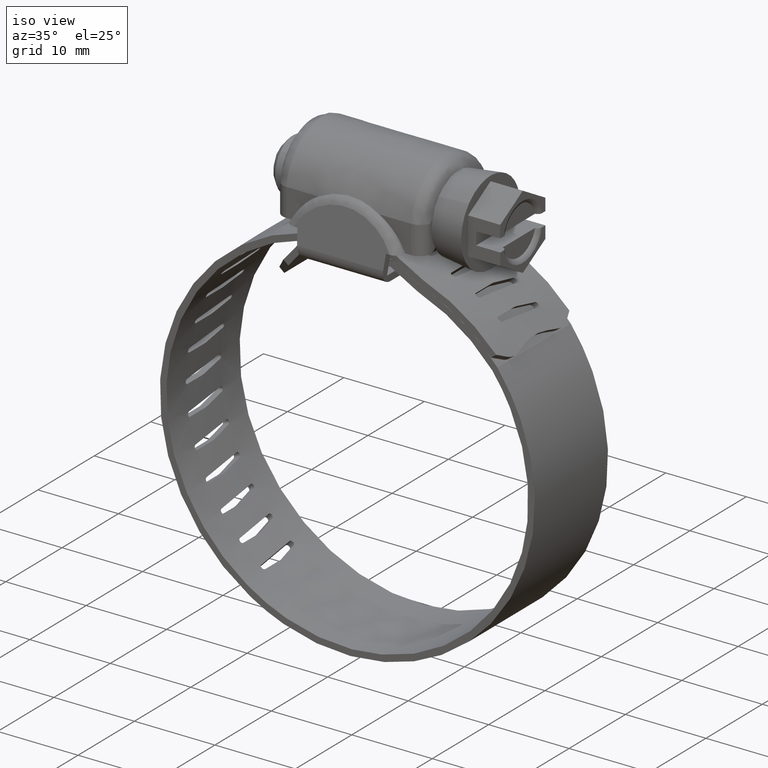
[diagram: clean part render]
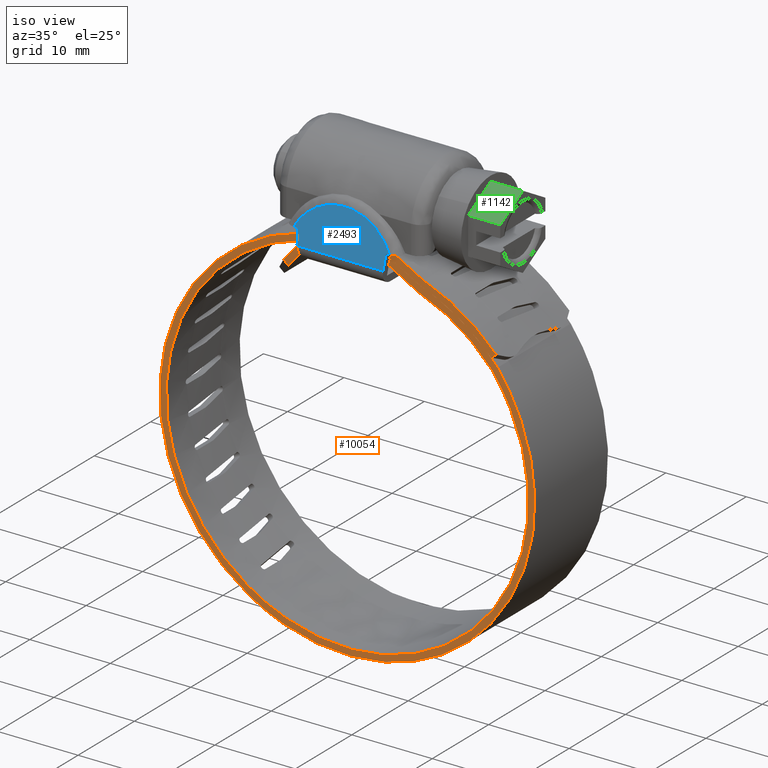
[diagram: same view with three faces highlighted in distinct colors, each labeled with its STEP entity id]
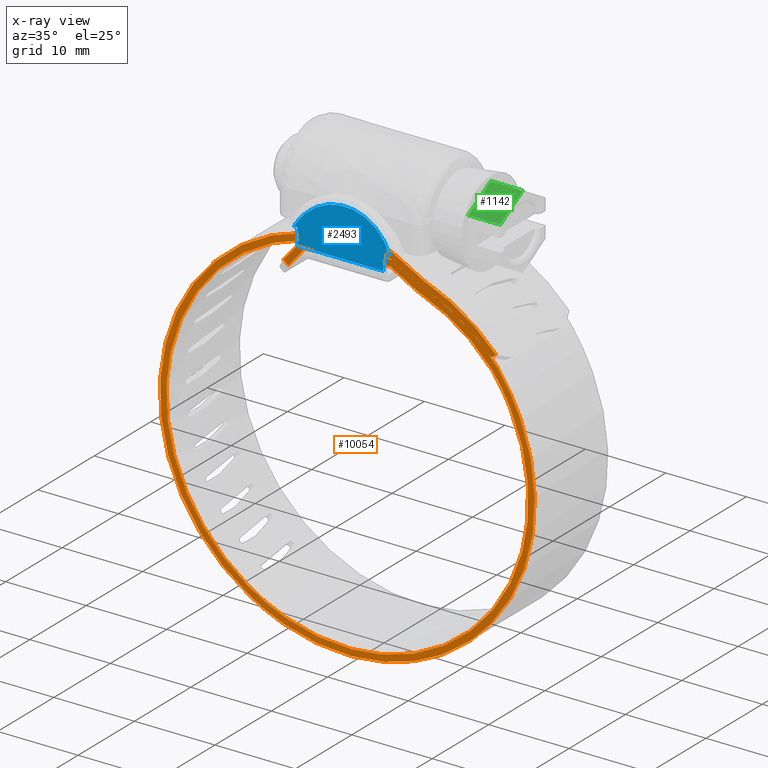
[diagram: x-ray of the same camera — body ghosted, the three highlighted faces saturated]
A machine part, iso view with three faces highlighted in distinct colors.
The next image is the same camera in x-ray (body ghosted, the three faces saturated) — at least one of them is partly hidden behind the body in this view.
Their STEP definitions:

[orange] entity #10054 — the highlighted face is a freeform B-spline surface patch.
#7740=CARTESIAN_POINT('',(-7.943454360733909,-6.500000000000139,8.477295496239281));
#7741=VERTEX_POINT('',#7740);
#7754=CARTESIAN_POINT('',(-7.334360875788830,-6.500000000000090,7.958638454835720));
#7755=VERTEX_POINT('',#7754);
#7761=CARTESIAN_POINT('',(-7.943454360733909,-6.500000000000139,8.477295496239281));
#7762=CARTESIAN_POINT('',(-7.334360875788830,-6.500000000000090,7.958638454835720));
#7763=QUASI_UNIFORM_CURVE('',1,(#7761,#7762),.UNSPECIFIED.,.F.,.U.);
#7764=EDGE_CURVE('',#7741,#7755,#7763,.T.);
#7791=CARTESIAN_POINT('',(-7.915607043560375,-6.500000000000000,-32.455222895916933));
#7792=VERTEX_POINT('',#7791);
#7793=CARTESIAN_POINT('',(18.650252286510000,-6.500000000000000,3.425319831993435));
#7794=VERTEX_POINT('',#7793);
#7795=CARTESIAN_POINT('',(-7.915607043560375,-6.500000000000000,-32.455222895916933));
#7796=CARTESIAN_POINT('',(-7.148567087033886,-6.499999999999996,-32.732293461648887));
#7797=CARTESIAN_POINT('',(-5.362022813465243,-6.499999999999988,-33.273466382122727));
#7798=CARTESIAN_POINT('',(-2.601822753993097,-6.500000000000057,-33.758986036335791));
#7799=CARTESIAN_POINT('',(0.079798216946134,-6.499999999999960,-33.884005079034623));
#7800=CARTESIAN_POINT('',(2.951690811136122,-6.499999999999904,-33.716137721653887));
#7801=CARTESIAN_POINT('',(6.054595110196877,-6.500000000000312,-33.140615055753422));
#7802=CARTESIAN_POINT('',(8.991460054109547,-6.499999999999830,-32.098606888560447));
#7803=CARTESIAN_POINT('',(11.428462693308980,-6.500000000000087,-30.888293765558078));
#7804=CARTESIAN_POINT('',(13.704547835783449,-6.499999999999939,-29.466313617431680));
#7805=CARTESIAN_POINT('',(15.930106396807190,-6.500000000000072,-27.635280030301129));
#7806=CARTESIAN_POINT('',(17.763983092344819,-6.499999999999913,-25.675833277027291));
#7807=CARTESIAN_POINT('',(19.231736864410131,-6.499999999999934,-23.764342562635051));
#7808=CARTESIAN_POINT('',(20.420295288363612,-6.500000000000074,-21.846579526161630));
#7809=CARTESIAN_POINT('',(21.439708186652449,-6.499999999999979,-19.748598690443970));
#7810=CARTESIAN_POINT('',(22.356947772065020,-6.499999999999811,-17.310454634235889));
#7811=CARTESIAN_POINT('',(23.071093650971211,-6.500000000000645,-14.357836144363770));
#7812=CARTESIAN_POINT('',(23.392317876546301,-6.499999999999670,-10.789921809961310));
#7813=CARTESIAN_POINT('',(23.176416182601809,-6.500000000000139,-7.484637238164327));
#7814=CARTESIAN_POINT('',(22.534194598517431,-6.499999999999971,-4.399831787429021));
#7815=CARTESIAN_POINT('',(21.576812822416240,-6.500000000000008,-1.560659217329400));
#7816=CARTESIAN_POINT('',(20.262346094525981,-6.500000000000000,1.090691835940447));
#7817=CARTESIAN_POINT('',(19.162392360121991,-6.500000000000001,2.741438361779787));
#7818=CARTESIAN_POINT('',(18.650252286510000,-6.500000000000000,3.425319831993435));
#7819=B_SPLINE_CURVE_WITH_KNOTS('',3,(#7795,#7796,#7797,#7798,#7799,#7800,#7801,#7802,#7803,#7804,#7805,#7806,#7807,#7808,#7809,#7810,#7811,#7812,#7813,#7814,#7815,#7816,#7817,#7818),.UNSPECIFIED.,.F.,.U.,(4,1,1,1,1,1,1,1,1,1,1,1,1,1,1,1,1,1,1,1,1,4),(0.000000054406485,2.446647714359436,5.592416570020617,8.388609654903164,10.485773257100680,14.214062504475899,17.825842638563959,19.806484361100271,22.369681955929330,25.864966200051139,28.428162981069381,30.408763950502699,33.088443390256728,35.185629683141919,37.399293694048232,40.894548254998462,44.273311356748287,48.118100889011430,50.797818299880959,53.710522007769107,57.089289756068183,59.652463017857208),.UNSPECIFIED.);
#7820=EDGE_CURVE('',#7792,#7794,#7819,.T.);
#7822=CARTESIAN_POINT('',(-5.420225032641400,-6.500000000000000,12.119784642097800));
#7823=VERTEX_POINT('',#7822);
#7824=CARTESIAN_POINT('',(-5.420225032641400,-6.500000000000000,12.119784642097800));
#7825=CARTESIAN_POINT('',(-6.553363053354351,-6.500000000000005,11.848810389936119));
#7826=CARTESIAN_POINT('',(-8.667546591455293,-6.499999999999996,11.171979570614120));
#7827=CARTESIAN_POINT('',(-11.608471729144510,-6.500000000000004,9.743057456246287));
#7828=CARTESIAN_POINT('',(-14.265468575385441,-6.500000000000029,7.974393463811858));
#7829=CARTESIAN_POINT('',(-16.422196474544521,-6.499999999999939,6.064336440502831));
#7830=CARTESIAN_POINT('',(-18.078704747728398,-6.500000000000076,4.207528219871150));
#7831=CARTESIAN_POINT('',(-19.723587648670179,-6.499999999999898,1.991383399053896));
#7832=CARTESIAN_POINT('',(-21.184989099740449,-6.500000000000221,-0.630703590822161));
#7833=CARTESIAN_POINT('',(-22.195045637467341,-6.499999999999922,-3.327264151224912));
#7834=CARTESIAN_POINT('',(-22.856743338214379,-6.499999999999980,-5.805203635919967));
#7835=CARTESIAN_POINT('',(-23.225217670279928,-6.500000000000119,-8.111417644933207));
#7836=CARTESIAN_POINT('',(-23.350093552466319,-6.499999999999927,-10.985820363683670));
#7837=CARTESIAN_POINT('',(-23.154174963040401,-6.500000000000031,-13.625876123781721));
#7838=CARTESIAN_POINT('',(-22.629974056229479,-6.500000000000000,-16.257584157452271));
#7839=CARTESIAN_POINT('',(-21.908133905328359,-6.499999999999996,-18.598568562102201));
#7840=CARTESIAN_POINT('',(-21.036398823552229,-6.500000000000003,-20.637006557349920));
#7841=CARTESIAN_POINT('',(-19.925391522427880,-6.499999999999995,-22.687140470175081));
#7842=CARTESIAN_POINT('',(-18.601999339066651,-6.500000000000003,-24.656768658001159));
#7843=CARTESIAN_POINT('',(-17.036042239676600,-6.499999999999999,-26.491085688428399));
#7844=CARTESIAN_POINT('',(-15.300428843931090,-6.500000000000000,-28.162821508006029));
#7845=CARTESIAN_POINT('',(-13.622288886044910,-6.500000000000002,-29.490009062073931));
#7846=CARTESIAN_POINT('',(-11.138014297878961,-6.499999999999996,-31.088133086519552));
#7847=CARTESIAN_POINT('',(-9.267150415888365,-6.500000000000004,-31.967223456008799));
#7848=CARTESIAN_POINT('',(-7.915607043560375,-6.500000000000000,-32.455222895916933));
#7849=B_SPLINE_CURVE_WITH_KNOTS('',3,(#7824,#7825,#7826,#7827,#7828,#7829,#7830,#7831,#7832,#7833,#7834,#7835,#7836,#7837,#7838,#7839,#7840,#7841,#7842,#7843,#7844,#7845,#7846,#7847,#7848),.UNSPECIFIED.,.F.,.U.,(4,1,1,1,1,1,1,1,1,1,1,1,1,1,1,1,1,1,1,1,1,1,4),(0.000000054419928,3.495254881927451,6.640972387819019,9.786732199204977,13.048974367572660,15.262643474164619,17.243292770001450,21.321115237118772,24.233816571064800,25.864966200061460,29.010707065615470,31.224302831318379,34.486551010590993,36.933259447848101,39.263420735544180,41.826621449156463,43.574259209524712,46.253965652463933,48.933663852548200,50.797818299883303,53.477527083685388,55.341670534495229,59.652463017857123),.UNSPECIFIED.);
#7850=EDGE_CURVE('',#7823,#7792,#7849,.T.);
#8088=CARTESIAN_POINT('',(-5.352989633769540,-6.500000000000000,11.312958496820739));
#8089=VERTEX_POINT('',#8088);
#8090=CARTESIAN_POINT('',(-7.596593014675013,-6.500000000000000,-31.719804842799402));
#8091=VERTEX_POINT('',#8090);
#8092=CARTESIAN_POINT('',(-5.352989633769540,-6.500000000000000,11.312958496820739));
#8093=CARTESIAN_POINT('',(-6.262506187628722,-6.499999999999998,11.090210753147060));
#8094=CARTESIAN_POINT('',(-7.982000840923290,-6.500000000000008,10.553280089793249));
#8095=CARTESIAN_POINT('',(-10.206202371430891,-6.499999999999988,9.553339856094761));
#8096=CARTESIAN_POINT('',(-12.220570098586951,-6.499999999999989,8.393612475248872));
#8097=CARTESIAN_POINT('',(-13.991639303468750,-6.500000000000068,7.129854487369673));
#8098=CARTESIAN_POINT('',(-15.764346517865061,-6.499999999999874,5.568328625815862));
#8099=CARTESIAN_POINT('',(-17.394271612380631,-6.500000000000062,3.805615308642731));
#8100=CARTESIAN_POINT('',(-18.771993912548581,-6.500000000000132,1.931418682316276));
#8101=CARTESIAN_POINT('',(-19.897837172288529,-6.499999999999795,0.027489373270760));
#8102=CARTESIAN_POINT('',(-20.751756860373781,-6.500000000000104,-1.767101755412130));
#8103=CARTESIAN_POINT('',(-21.597072877080031,-6.500000000000038,-4.052626601693874));
#8104=CARTESIAN_POINT('',(-22.184707555173478,-6.499999999999971,-6.460529324332126));
#8105=CARTESIAN_POINT('',(-22.521807544398179,-6.500000000000012,-9.328482844267748));
#8106=CARTESIAN_POINT('',(-22.513744409232999,-6.499999999999990,-12.182061574355330));
#8107=CARTESIAN_POINT('',(-22.123949678077910,-6.500000000000014,-14.895148852852151));
#8108=CARTESIAN_POINT('',(-21.518573878775559,-6.500000000000032,-17.216860154293489));
#8109=CARTESIAN_POINT('',(-20.643769239809188,-6.499999999999925,-19.651859181844490));
#8110=CARTESIAN_POINT('',(-19.217755790809768,-6.500000000000015,-22.426245617162291));
#8111=CARTESIAN_POINT('',(-17.213172584760660,-6.500000000000042,-25.149076769101569));
#8112=CARTESIAN_POINT('',(-15.265791129972030,-6.499999999999924,-27.129646973213831));
#8113=CARTESIAN_POINT('',(-13.149003814980160,-6.499999999999908,-28.864297441622160));
#8114=CARTESIAN_POINT('',(-10.712703127820509,-6.500000000000487,-30.422875568247811));
#8115=CARTESIAN_POINT('',(-8.654308787254720,-6.499999999999298,-31.340482351334462));
#8116=CARTESIAN_POINT('',(-7.596593014675013,-6.500000000000000,-31.719804842799402));
#8117=B_SPLINE_CURVE_WITH_KNOTS('',3,(#8092,#8093,#8094,#8095,#8096,#8097,#8098,#8099,#8100,#8101,#8102,#8103,#8104,#8105,#8106,#8107,#8108,#8109,#8110,#8111,#8112,#8113,#8114,#8115,#8116),.UNSPECIFIED.,.F.,.U.,(4,1,1,1,1,1,1,1,1,1,1,1,1,1,1,1,1,1,1,1,1,1,4),(0.000000055412912,2.809185934230023,5.393618476803603,7.303872376298941,9.775981397013737,11.910958570605059,14.383053436636370,16.967510391273741,18.877761954011419,21.012760930389220,22.922998277337278,26.181682968863399,28.429036266528328,31.575281650792700,34.721565130226843,36.631816675349732,38.766816010663000,42.474951256498443,45.958351310998829,48.879922299300020,50.790163484622887,54.161185910936531,57.532209932860312),.UNSPECIFIED.);
#8118=EDGE_CURVE('',#8089,#8091,#8117,.T.);
#8120=CARTESIAN_POINT('',(18.023018152026101,-6.500000000000000,2.928253715390470));
#8121=VERTEX_POINT('',#8120);
#8122=CARTESIAN_POINT('',(-7.596593014675013,-6.500000000000000,-31.719804842799402));
#8123=CARTESIAN_POINT('',(-6.538928237799990,-6.500000000000012,-32.099243335543477));
#8124=CARTESIAN_POINT('',(-4.547616873585054,-6.499999999999981,-32.649127606662631));
#8125=CARTESIAN_POINT('',(-1.236669017241120,-6.500000000000004,-33.089319539304171));
#8126=CARTESIAN_POINT('',(2.033372237880502,-6.499999999999992,-33.039657552406339));
#8127=CARTESIAN_POINT('',(5.215915346791026,-6.500000000000037,-32.493299318861169));
#8128=CARTESIAN_POINT('',(7.832885952187151,-6.500000000000012,-31.684184053114709));
#8129=CARTESIAN_POINT('',(10.204117387186560,-6.499999999999992,-30.647329200173210));
#8130=CARTESIAN_POINT('',(12.120288343809181,-6.500000000000009,-29.538511837757589));
#8131=CARTESIAN_POINT('',(14.042725912978881,-6.499999999999987,-28.167609653992120));
#8132=CARTESIAN_POINT('',(15.598790146899329,-6.500000000000030,-26.811464153782421));
#8133=CARTESIAN_POINT('',(17.262431458917909,-6.499999999999962,-25.031245302878311));
#8134=CARTESIAN_POINT('',(18.787277616361660,-6.500000000000031,-23.032436236483981));
#8135=CARTESIAN_POINT('',(20.065268386141849,-6.499999999999978,-20.822602466655692));
#8136=CARTESIAN_POINT('',(21.197561995496059,-6.500000000000003,-18.248941144237460));
#8137=CARTESIAN_POINT('',(22.015701552806640,-6.500000000000004,-15.552733791259980));
#8138=CARTESIAN_POINT('',(22.480598166919229,-6.499999999999996,-12.471687471569220));
#8139=CARTESIAN_POINT('',(22.535159205503930,-6.500000000000008,-9.732618828833134));
#8140=CARTESIAN_POINT('',(22.268514873240971,-6.499999999999980,-6.932219976733531));
#8141=CARTESIAN_POINT('',(21.670822296272529,-6.500000000000060,-4.256711361506737));
#8142=CARTESIAN_POINT('',(20.783976311922149,-6.499999999999986,-1.824637164710198));
#8143=CARTESIAN_POINT('',(19.643646690121422,-6.499999999999636,0.538925305064385));
#8144=CARTESIAN_POINT('',(18.695745594348050,-6.500000000000912,2.028202781804284));
#8145=CARTESIAN_POINT('',(18.023018152026101,-6.500000000000000,2.928253715390470));
#8146=B_SPLINE_CURVE_WITH_KNOTS('',3,(#8122,#8123,#8124,#8125,#8126,#8127,#8128,#8129,#8130,#8131,#8132,#8133,#8134,#8135,#8136,#8137,#8138,#8139,#8140,#8141,#8142,#8143,#8144,#8145),.UNSPECIFIED.,.F.,.U.,(4,1,1,1,1,1,1,1,1,1,1,1,1,1,1,1,1,1,1,1,1,4),(0.000000055497175,3.370994035400351,6.180194779482690,10.000703332406511,13.147007659128480,15.843832643027520,18.203558721974769,20.900380375076860,22.473522574003329,25.282740331909149,27.080626426421151,29.777397799224520,32.811337517233540,34.721564769485553,38.204968898707513,41.238902614489852,44.048099276632641,46.407820766819633,49.666496290132237,52.250958838116759,54.161185348125478,57.532209335031943),.UNSPECIFIED.);
#8147=EDGE_CURVE('',#8091,#8121,#8146,.T.);
#8376=CARTESIAN_POINT('',(8.891210296745609,-6.500000000000000,9.261212900200299));
#8377=VERTEX_POINT('',#8376);
#8378=CARTESIAN_POINT('',(18.023018152026101,-6.500000000000000,2.928253715390470));
#8379=CARTESIAN_POINT('',(17.533404401224669,-6.500000000000001,3.511327080943753));
#8380=CARTESIAN_POINT('',(16.390881693058059,-6.500000000000012,4.731544569836263));
#8381=CARTESIAN_POINT('',(14.482909492340900,-6.499999999999976,6.338123904729998));
#8382=CARTESIAN_POINT('',(11.975737675368860,-6.499999999999996,7.970975904903346));
#8383=CARTESIAN_POINT('',(10.078204070566260,-6.500000000000060,8.840902252366536));
#8384=CARTESIAN_POINT('',(8.891210296745609,-6.500000000000000,9.261212900200299));
#8385=B_SPLINE_CURVE_WITH_KNOTS('',3,(#8378,#8379,#8380,#8381,#8382,#8383,#8384),.UNSPECIFIED.,.F.,.U.,(4,1,1,1,4),(3.220642E-009,2.284134800954798,5.007528224701697,7.467362952479659,11.244972398327731),.UNSPECIFIED.);
#8386=EDGE_CURVE('',#8121,#8377,#8385,.T.);
#8423=CARTESIAN_POINT('',(8.520745558330830,-6.500000000000000,9.442571207108379));
#8424=VERTEX_POINT('',#8423);
#8425=CARTESIAN_POINT('',(8.520745558330830,-6.500000000000000,9.442571207108379));
#8426=CARTESIAN_POINT('',(8.636741866078252,-6.500000000000002,9.368191226072726));
#8427=CARTESIAN_POINT('',(8.761315274702623,-6.500000000000007,9.307202184358193));
#8428=CARTESIAN_POINT('',(8.891210296745609,-6.500000000000000,9.261212900200299));
#8429=B_SPLINE_CURVE_WITH_KNOTS('',3,(#8425,#8426,#8427,#8428),.UNSPECIFIED.,.F.,.U.,(4,4),(1.693800E-009,0.413385586399348),.UNSPECIFIED.);
#8430=EDGE_CURVE('',#8424,#8377,#8429,.T.);
#8464=CARTESIAN_POINT('',(5.345477946834220,-6.500000000000000,11.222824051806439));
#8465=VERTEX_POINT('',#8464);
#8466=CARTESIAN_POINT('',(8.520745558330830,-6.500000000000000,9.442571207108379));
#8467=CARTESIAN_POINT('',(7.498628657825021,-6.499999999999994,10.097855615698160));
#8468=CARTESIAN_POINT('',(6.437736373960262,-6.500000000000012,10.692644560035360));
#8469=CARTESIAN_POINT('',(5.345477946834220,-6.500000000000000,11.222824051806439));
#8470=B_SPLINE_CURVE_WITH_KNOTS('',3,(#8466,#8467,#8468,#8469),.UNSPECIFIED.,.F.,.U.,(4,4),(1.337912E-010,3.642398924120134),.UNSPECIFIED.);
#8471=EDGE_CURVE('',#8424,#8465,#8470,.T.);
#8496=CARTESIAN_POINT('',(-5.275000000000000,-6.500000000000000,10.377083000000200));
#8497=VERTEX_POINT('',#8496);
#8498=CARTESIAN_POINT('',(-5.275000000000000,-6.500000000000000,10.377083000000200));
#8499=CARTESIAN_POINT('',(5.345477946834220,-6.500000000000000,11.222824051806439));
#8500=QUASI_UNIFORM_CURVE('',1,(#8498,#8499),.UNSPECIFIED.,.F.,.U.);
#8501=EDGE_CURVE('',#8497,#8465,#8500,.T.);
#8536=CARTESIAN_POINT('',(-7.334360875788830,-6.500000000000090,7.958638454835720));
#8537=CARTESIAN_POINT('',(-5.275000000000000,-6.500000000000000,10.377083000000200));
#8538=QUASI_UNIFORM_CURVE('',1,(#8536,#8537),.UNSPECIFIED.,.F.,.U.);
#8539=EDGE_CURVE('',#7755,#8497,#8538,.T.);
#8576=CARTESIAN_POINT('',(-5.669089974837690,-6.500000000000000,11.148232973712741));
#8577=VERTEX_POINT('',#8576);
#8578=CARTESIAN_POINT('',(-5.669089974837690,-6.500000000000000,11.148232973712741));
#8579=CARTESIAN_POINT('',(-7.943454360733909,-6.500000000000139,8.477295496239281));
#8580=QUASI_UNIFORM_CURVE('',1,(#8578,#8579),.UNSPECIFIED.,.F.,.U.);
#8581=EDGE_CURVE('',#8577,#7741,#8580,.T.);
#8596=CARTESIAN_POINT('',(5.497490615650190,-6.500000000000000,12.037461844668920));
#8597=VERTEX_POINT('',#8596);
#8598=CARTESIAN_POINT('',(5.497490615650190,-6.500000000000000,12.037461844668920));
#8599=CARTESIAN_POINT('',(-5.669089974837690,-6.500000000000000,11.148232973712741));
#8600=QUASI_UNIFORM_CURVE('',1,(#8598,#8599),.UNSPECIFIED.,.F.,.U.);
#8601=EDGE_CURVE('',#8597,#8577,#8600,.T.);
#8633=CARTESIAN_POINT('',(8.952501685405251,-6.500000000000000,10.116059579619000));
#8634=VERTEX_POINT('',#8633);
#8635=CARTESIAN_POINT('',(8.952501685405251,-6.500000000000000,10.116059579619000));
#8636=CARTESIAN_POINT('',(7.842401183048898,-6.500000000000010,10.827739501784350));
#8637=CARTESIAN_POINT('',(6.687732523731253,-6.499999999999973,11.469890321215640));
#8638=CARTESIAN_POINT('',(5.497490615650190,-6.500000000000000,12.037461844668920));
#8639=B_SPLINE_CURVE_WITH_KNOTS('',3,(#8635,#8636,#8637,#8638),.UNSPECIFIED.,.F.,.U.,(4,4),(1.434333E-010,3.955920062126980),.UNSPECIFIED.);
#8640=EDGE_CURVE('',#8634,#8597,#8639,.T.);
#8674=CARTESIAN_POINT('',(9.158315498192051,-6.500000000000000,10.015304944555799));
#8675=VERTEX_POINT('',#8674);
#8676=CARTESIAN_POINT('',(8.952501685405251,-6.500000000000000,10.116059579619000));
#8677=CARTESIAN_POINT('',(9.016942980928654,-6.499999999999997,10.074732998908701));
#8678=CARTESIAN_POINT('',(9.086154146414513,-6.499999999999998,10.040857995311811));
#8679=CARTESIAN_POINT('',(9.158315498192051,-6.500000000000000,10.015304944555799));
#8680=B_SPLINE_CURVE_WITH_KNOTS('',3,(#8676,#8677,#8678,#8679),.UNSPECIFIED.,.F.,.U.,(4,4),(2.437034E-009,0.229664641168087),.UNSPECIFIED.);
#8681=EDGE_CURVE('',#8634,#8675,#8680,.T.);
#8715=CARTESIAN_POINT('',(18.650252286510000,-6.500000000000000,3.425319831993435));
#8716=CARTESIAN_POINT('',(17.868002976820019,-6.499999999999978,4.358980260937257));
#8717=CARTESIAN_POINT('',(16.276445260253091,-6.500000000000044,5.965186388508577));
#8718=CARTESIAN_POINT('',(13.943420188114461,-6.499999999999998,7.687834781624947));
#8719=CARTESIAN_POINT('',(11.617724851565370,-6.499999999999951,9.024101030231961));
#8720=CARTESIAN_POINT('',(10.105549150575870,-6.500000000000040,9.679834913673060));
#8721=CARTESIAN_POINT('',(9.158315498192051,-6.500000000000000,10.015304944555799));
#8722=B_SPLINE_CURVE_WITH_KNOTS('',3,(#8715,#8716,#8717,#8718,#8719,#8720,#8721),.UNSPECIFIED.,.F.,.U.,(4,1,1,1,4),(3.171975E-009,3.654118917840622,6.760114628757830,8.678526904285082,11.693173416253281),.UNSPECIFIED.);
#8723=EDGE_CURVE('',#7794,#8675,#8722,.T.);
#9696=CARTESIAN_POINT('',(17.845437538605001,-6.500000000000000,4.348126313892585));
#9697=VERTEX_POINT('',#9696);
#9704=CARTESIAN_POINT('',(18.489079278440801,-6.500000000000000,4.831032631837420));
#9705=VERTEX_POINT('',#9704);
#9711=CARTESIAN_POINT('',(18.489079278440801,-6.500000000000000,4.831032631837420));
#9712=CARTESIAN_POINT('',(17.845437538605001,-6.500000000000000,4.348126313892585));
#9713=QUASI_UNIFORM_CURVE('',1,(#9711,#9712),.UNSPECIFIED.,.F.,.U.);
#9714=EDGE_CURVE('',#9705,#9697,#9713,.T.);
#9801=CARTESIAN_POINT('',(9.408111426015370,-6.500000000000000,10.786125742977420));
#9802=VERTEX_POINT('',#9801);
#9803=CARTESIAN_POINT('',(5.491601281603991,-6.500000000000000,12.935040689760960));
#9804=VERTEX_POINT('',#9803);
#9805=CARTESIAN_POINT('',(9.408111426015370,-6.500000000000000,10.786125742977420));
#9806=CARTESIAN_POINT('',(8.154068837886804,-6.500000000000121,11.591315979898489));
#9807=CARTESIAN_POINT('',(6.844419249367082,-6.499999999999885,12.309873657796141));
#9808=CARTESIAN_POINT('',(5.491601281603991,-6.500000000000000,12.935040689760960));
#9809=B_SPLINE_CURVE_WITH_KNOTS('',3,(#9805,#9806,#9807,#9808),.UNSPECIFIED.,.F.,.U.,(4,4),(1.843894E-010,4.470855330536846),.UNSPECIFIED.);
#9810=EDGE_CURVE('',#9802,#9804,#9809,.T.);
#9858=CARTESIAN_POINT('',(8.975899945512472,-6.500000000000000,10.112929459475000));
#9859=VERTEX_POINT('',#9858);
#9860=CARTESIAN_POINT('',(9.141732246792632,-6.500000000000000,10.031776929180641));
#9861=VERTEX_POINT('',#9860);
#9862=CARTESIAN_POINT('',(8.975899945512472,-6.500000000000000,10.112929459475000));
#9863=CARTESIAN_POINT('',(9.141732246792632,-6.500000000000000,10.031776929180641));
#9864=QUASI_UNIFORM_CURVE('',1,(#9862,#9863),.UNSPECIFIED.,.F.,.U.);
#9865=EDGE_CURVE('',#9859,#9861,#9864,.T.);
#9903=CARTESIAN_POINT('',(5.417456028425690,-6.500000000000000,12.086555341109561));
#9904=VERTEX_POINT('',#9903);
#9905=CARTESIAN_POINT('',(8.975899945512472,-6.500000000000000,10.112929459475000));
#9906=CARTESIAN_POINT('',(7.833743625681191,-6.499999999999991,10.846258874650070));
#9907=CARTESIAN_POINT('',(6.644321930872013,-6.500000000000007,11.505957422453150));
#9908=CARTESIAN_POINT('',(5.417456028425690,-6.500000000000000,12.086555341109561));
#9909=B_SPLINE_CURVE_WITH_KNOTS('',3,(#9905,#9906,#9907,#9908),.UNSPECIFIED.,.F.,.U.,(4,4),(1.658842E-010,4.071931315558121),.UNSPECIFIED.);
#9910=EDGE_CURVE('',#9859,#9904,#9909,.T.);
#9952=CARTESIAN_POINT('',(5.417456028425690,-6.500000000000000,12.086555341109561));
#9953=CARTESIAN_POINT('',(3.897361272296674,-6.499999999999996,12.181330909629670));
#9954=CARTESIAN_POINT('',(0.281463798688837,-6.500000000000020,12.202062822738281));
#9955=CARTESIAN_POINT('',(-3.309852755267957,-6.499999999999989,11.739306161255380));
#9956=CARTESIAN_POINT('',(-5.352989633769540,-6.500000000000000,11.312958496820739));
#9957=B_SPLINE_CURVE_WITH_KNOTS('',3,(#9952,#9953,#9954,#9955,#9956),.UNSPECIFIED.,.F.,.U.,(4,1,4),(5.536016E-010,4.569143698655422,10.830561135271500),.UNSPECIFIED.);
#9958=EDGE_CURVE('',#9904,#8089,#9957,.T.);
#9987=CARTESIAN_POINT('',(5.491601281603991,-6.500000000000000,12.935040689760960));
#9988=CARTESIAN_POINT('',(3.836635480300775,-6.500000000000000,13.015418255674200));
#9989=CARTESIAN_POINT('',(0.174403743432207,-6.499999999999992,12.988770014615129));
#9990=CARTESIAN_POINT('',(-3.459451161699945,-6.500000000000001,12.512565431728721));
#9991=CARTESIAN_POINT('',(-5.420225032641400,-6.500000000000000,12.119784642097800));
#9992=B_SPLINE_CURVE_WITH_KNOTS('',3,(#9987,#9988,#9989,#9990,#9991),.UNSPECIFIED.,.F.,.U.,(4,1,4),(4.748397E-010,4.970749782179190,10.969923890782891),.UNSPECIFIED.);
#9993=EDGE_CURVE('',#9804,#7823,#9992,.T.);
#10008=CARTESIAN_POINT('',(-25.616147644246581,-6.500000000000000,15.326515716583010));
#10009=CARTESIAN_POINT('',(25.607662195163751,-6.500000000000000,15.326515716583010));
#10010=CARTESIAN_POINT('',(-25.616147644246581,-6.500000000000000,-36.179744361666764));
#10011=CARTESIAN_POINT('',(25.607662195163751,-6.500000000000000,-36.179744361666764));
#10012=B_SPLINE_SURFACE_WITH_KNOTS('',1,1,((#10008,#10010),(#10009,#10011)),.UNSPECIFIED.,.F.,.F.,.U.,(2,2),(2,2),(0.0,51.223809839410329),(0.0,51.506260078249767),.UNSPECIFIED.);
#10013=ORIENTED_EDGE('',*,*,#8581,.T.);
#10014=ORIENTED_EDGE('',*,*,#7764,.T.);
#10015=ORIENTED_EDGE('',*,*,#8539,.T.);
#10016=ORIENTED_EDGE('',*,*,#8501,.T.);
#10017=ORIENTED_EDGE('',*,*,#8471,.F.);
#10018=ORIENTED_EDGE('',*,*,#8430,.T.);
#10019=ORIENTED_EDGE('',*,*,#8386,.F.);
#10020=ORIENTED_EDGE('',*,*,#8147,.F.);
#10021=ORIENTED_EDGE('',*,*,#8118,.F.);
#10022=ORIENTED_EDGE('',*,*,#9958,.F.);
#10023=ORIENTED_EDGE('',*,*,#9910,.F.);
#10024=ORIENTED_EDGE('',*,*,#9865,.T.);
#10025=CARTESIAN_POINT('',(17.845437538605001,-6.500000000000000,4.348126313892585));
#10026=CARTESIAN_POINT('',(17.079009531654449,-6.499999999999991,5.165558612164896));
#10027=CARTESIAN_POINT('',(15.582365721996119,-6.499999999999984,6.534607393972996));
#10028=CARTESIAN_POINT('',(12.695154820028410,-6.500000000000006,8.521671929514133));
#10029=CARTESIAN_POINT('',(10.533434954455030,-6.500000000000018,9.540563129211462));
#10030=CARTESIAN_POINT('',(9.141732246792632,-6.500000000000000,10.031776929180641));
#10031=B_SPLINE_CURVE_WITH_KNOTS('',3,(#10025,#10026,#10027,#10028,#10029,#10030),.UNSPECIFIED.,.F.,.U.,(4,1,1,4),(2.360773E-009,3.361609431405975,6.067287506042081,10.494775881866889),.UNSPECIFIED.);
#10032=EDGE_CURVE('',#9697,#9861,#10031,.T.);
#10033=ORIENTED_EDGE('',*,*,#10032,.F.);
#10034=ORIENTED_EDGE('',*,*,#9714,.F.);
#10035=CARTESIAN_POINT('',(18.489079278440801,-6.500000000000000,4.831032631837420));
#10036=CARTESIAN_POINT('',(17.497165817630620,-6.500000000000001,5.897350586551053));
#10037=CARTESIAN_POINT('',(15.951503470681390,-6.500000000000003,7.267380180600934));
#10038=CARTESIAN_POINT('',(12.911642453282210,-6.499999999999995,9.302053039964575));
#10039=CARTESIAN_POINT('',(10.916083206016070,-6.500000000000010,10.253923169329980));
#10040=CARTESIAN_POINT('',(9.408111426015370,-6.500000000000000,10.786125742977420));
#10041=B_SPLINE_CURVE_WITH_KNOTS('',3,(#10035,#10036,#10037,#10038,#10039,#10040),.UNSPECIFIED.,.F.,.U.,(4,1,1,4),(2.394433E-009,4.368965978851207,6.167943364657314,10.965242807142900),.UNSPECIFIED.);
#10042=EDGE_CURVE('',#9705,#9802,#10041,.T.);
#10043=ORIENTED_EDGE('',*,*,#10042,.T.);
#10044=ORIENTED_EDGE('',*,*,#9810,.T.);
#10045=ORIENTED_EDGE('',*,*,#9993,.T.);
#10046=ORIENTED_EDGE('',*,*,#7850,.T.);
#10047=ORIENTED_EDGE('',*,*,#7820,.T.);
#10048=ORIENTED_EDGE('',*,*,#8723,.T.);
#10049=ORIENTED_EDGE('',*,*,#8681,.F.);
#10050=ORIENTED_EDGE('',*,*,#8640,.T.);
#10051=ORIENTED_EDGE('',*,*,#8601,.T.);
#10052=EDGE_LOOP('',(#10013,#10014,#10015,#10016,#10017,#10018,#10019,#10020,#10021,#10022,#10023,#10024,#10033,#10034,#10043,#10044,#10045,#10046,#10047,#10048,#10049,#10050,#10051));
#10053=FACE_OUTER_BOUND('',#10052,.T.);
#10054=ADVANCED_FACE('',(#10053),#10012,.F.);

[blue] entity #2493 — the highlighted face is a freeform B-spline surface patch.
#1422=CARTESIAN_POINT('',(-5.343755088336830,-7.786144508388070,11.202144060042160));
#1423=VERTEX_POINT('',#1422);
#1445=CARTESIAN_POINT('',(5.343755088336931,-7.786144508388049,11.202144060042141));
#1446=VERTEX_POINT('',#1445);
#1460=CARTESIAN_POINT('',(-5.343755088336830,-7.786144508388070,11.202144060042160));
#1461=CARTESIAN_POINT('',(5.343755088336931,-7.786144508388049,11.202144060042141));
#1462=QUASI_UNIFORM_CURVE('',1,(#1460,#1461),.UNSPECIFIED.,.F.,.U.);
#1463=EDGE_CURVE('',#1423,#1446,#1462,.T.);
#1654=CARTESIAN_POINT('',(-5.962146346480231,-7.501606321312799,13.077083000000201));
#1655=VERTEX_POINT('',#1654);
#1679=CARTESIAN_POINT('',(5.962146346480231,-7.501606321312799,13.077083000000201));
#1680=VERTEX_POINT('',#1679);
#1681=CARTESIAN_POINT('',(5.962146346480231,-7.501606321312799,13.077083000000201));
#1682=CARTESIAN_POINT('',(4.098355137342957,-6.947681100976019,16.727123706694861));
#1683=CARTESIAN_POINT('',(7.585472E-015,-6.947681100976018,16.727123706694851));
#1684=CARTESIAN_POINT('',(-4.098355137342947,-6.947681100976019,16.727123706694861));
#1685=CARTESIAN_POINT('',(-5.962146346480231,-7.501606321312799,13.077083000000201));
#1693=(BOUNDED_CURVE()B_SPLINE_CURVE(2,(#1681,#1682,#1683,#1684,#1685),.UNSPECIFIED.,.F.,.U.)B_SPLINE_CURVE_WITH_KNOTS((3,2,3),(0.0,0.500000000000000,1.0),.UNSPECIFIED.)CURVE()GEOMETRIC_REPRESENTATION_ITEM()RATIONAL_B_SPLINE_CURVE((1.0,0.852867418584550,1.0,0.852867418584550,1.0))REPRESENTATION_ITEM(''));
#1694=EDGE_CURVE('',#1680,#1655,#1693,.T.);
#2460=CARTESIAN_POINT('',(-6.557764743382014,-6.905799915372402,17.003096034159309));
#2461=CARTESIAN_POINT('',(-6.557764743382014,-7.828025836424294,10.926170794031510));
#2462=CARTESIAN_POINT('',(6.557765063216467,-6.905799915372402,17.003096034159309));
#2463=CARTESIAN_POINT('',(6.557765063216467,-7.828025836424294,10.926170794031510));
#2464=B_SPLINE_SURFACE_WITH_KNOTS('',1,1,((#2460,#2462),(#2461,#2463)),.UNSPECIFIED.,.F.,.F.,.U.,(2,2),(2,2),(0.0,6.146504781057471),(0.0,13.115529806598479),.UNSPECIFIED.);
#2465=CARTESIAN_POINT('',(-5.500000000000000,-7.501606321312620,13.077083000000201));
#2466=VERTEX_POINT('',#2465);
#2467=CARTESIAN_POINT('',(-5.500000000000000,-7.501606321312620,13.077083000000201));
#2468=CARTESIAN_POINT('',(-5.343755088336830,-7.786144508388070,11.202144060042160));
#2469=QUASI_UNIFORM_CURVE('',1,(#2467,#2468),.UNSPECIFIED.,.F.,.U.);
#2470=EDGE_CURVE('',#2466,#1423,#2469,.T.);
#2471=ORIENTED_EDGE('',*,*,#2470,.T.);
#2472=ORIENTED_EDGE('',*,*,#1463,.T.);
#2473=CARTESIAN_POINT('',(5.500000000000100,-7.501606321312799,13.077083000000201));
#2474=VERTEX_POINT('',#2473);
#2475=CARTESIAN_POINT('',(5.343755088336931,-7.786144508388049,11.202144060042141));
#2476=CARTESIAN_POINT('',(5.500000000000100,-7.501606321312799,13.077083000000201));
#2477=QUASI_UNIFORM_CURVE('',1,(#2475,#2476),.UNSPECIFIED.,.F.,.U.);
#2478=EDGE_CURVE('',#1446,#2474,#2477,.T.);
#2479=ORIENTED_EDGE('',*,*,#2478,.T.);
#2480=CARTESIAN_POINT('',(5.500000000000100,-7.501606321312799,13.077083000000201));
#2481=CARTESIAN_POINT('',(5.962146346480231,-7.501606321312799,13.077083000000201));
#2482=QUASI_UNIFORM_CURVE('',1,(#2480,#2481),.UNSPECIFIED.,.F.,.U.);
#2483=EDGE_CURVE('',#2474,#1680,#2482,.T.);
#2484=ORIENTED_EDGE('',*,*,#2483,.T.);
#2485=ORIENTED_EDGE('',*,*,#1694,.T.);
#2486=CARTESIAN_POINT('',(-5.962146346480231,-7.501606321312799,13.077083000000201));
#2487=CARTESIAN_POINT('',(-5.500000000000000,-7.501606321312620,13.077083000000201));
#2488=QUASI_UNIFORM_CURVE('',1,(#2486,#2487),.UNSPECIFIED.,.F.,.U.);
#2489=EDGE_CURVE('',#1655,#2466,#2488,.T.);
#2490=ORIENTED_EDGE('',*,*,#2489,.T.);
#2491=EDGE_LOOP('',(#2471,#2472,#2479,#2484,#2485,#2490));
#2492=FACE_OUTER_BOUND('',#2491,.T.);
#2493=ADVANCED_FACE('',(#2492),#2464,.T.);

[green] entity #1142 — the highlighted face is a freeform B-spline surface patch.
#1107=CARTESIAN_POINT('',(13.050200007752780,0.199799940407278,20.561277545544229));
#1108=CARTESIAN_POINT('',(13.050200007752780,-4.199799797356127,18.021167537046480));
#1109=CARTESIAN_POINT('',(17.449800099535580,0.199799940407278,20.561277545544229));
#1110=CARTESIAN_POINT('',(17.449800099535580,-4.199799797356127,18.021167537046480));
#1111=B_SPLINE_SURFACE_WITH_KNOTS('',1,1,((#1107,#1109),(#1108,#1110)),.UNSPECIFIED.,.F.,.F.,.U.,(2,2),(2,2),(0.0,5.080220143635340),(0.0,4.399600091782808),.UNSPECIFIED.);
#1112=CARTESIAN_POINT('',(17.250000000000000,0.0,20.445923000000100));
#1113=VERTEX_POINT('',#1112);
#1114=CARTESIAN_POINT('',(17.250000000000000,-4.0,18.136521999999999));
#1115=VERTEX_POINT('',#1114);
#1116=CARTESIAN_POINT('',(17.250000000000000,0.0,20.445923000000100));
#1117=CARTESIAN_POINT('',(17.250000000000000,-4.0,18.136521999999999));
#1118=QUASI_UNIFORM_CURVE('',1,(#1116,#1117),.UNSPECIFIED.,.F.,.U.);
#1119=EDGE_CURVE('',#1113,#1115,#1118,.T.);
#1120=ORIENTED_EDGE('',*,*,#1119,.F.);
#1121=CARTESIAN_POINT('',(13.250000000000000,0.0,20.445923000000100));
#1122=VERTEX_POINT('',#1121);
#1123=CARTESIAN_POINT('',(13.250000000000000,0.0,20.445923000000100));
#1124=CARTESIAN_POINT('',(17.250000000000000,0.0,20.445923000000100));
#1125=QUASI_UNIFORM_CURVE('',1,(#1123,#1124),.UNSPECIFIED.,.F.,.U.);
#1126=EDGE_CURVE('',#1122,#1113,#1125,.T.);
#1127=ORIENTED_EDGE('',*,*,#1126,.F.);
#1128=CARTESIAN_POINT('',(13.250000000000000,-4.0,18.136521999999999));
#1129=VERTEX_POINT('',#1128);
#1130=CARTESIAN_POINT('',(13.250000000000000,0.0,20.445923000000100));
#1131=CARTESIAN_POINT('',(13.250000000000000,-4.0,18.136521999999999));
#1132=QUASI_UNIFORM_CURVE('',1,(#1130,#1131),.UNSPECIFIED.,.F.,.U.);
#1133=EDGE_CURVE('',#1122,#1129,#1132,.T.);
#1134=ORIENTED_EDGE('',*,*,#1133,.T.);
#1135=CARTESIAN_POINT('',(13.250000000000000,-4.0,18.136521999999999));
#1136=CARTESIAN_POINT('',(17.250000000000000,-4.0,18.136521999999999));
#1137=QUASI_UNIFORM_CURVE('',1,(#1135,#1136),.UNSPECIFIED.,.F.,.U.);
#1138=EDGE_CURVE('',#1129,#1115,#1137,.T.);
#1139=ORIENTED_EDGE('',*,*,#1138,.T.);
#1140=EDGE_LOOP('',(#1120,#1127,#1134,#1139));
#1141=FACE_OUTER_BOUND('',#1140,.T.);
#1142=ADVANCED_FACE('',(#1141),#1111,.T.);